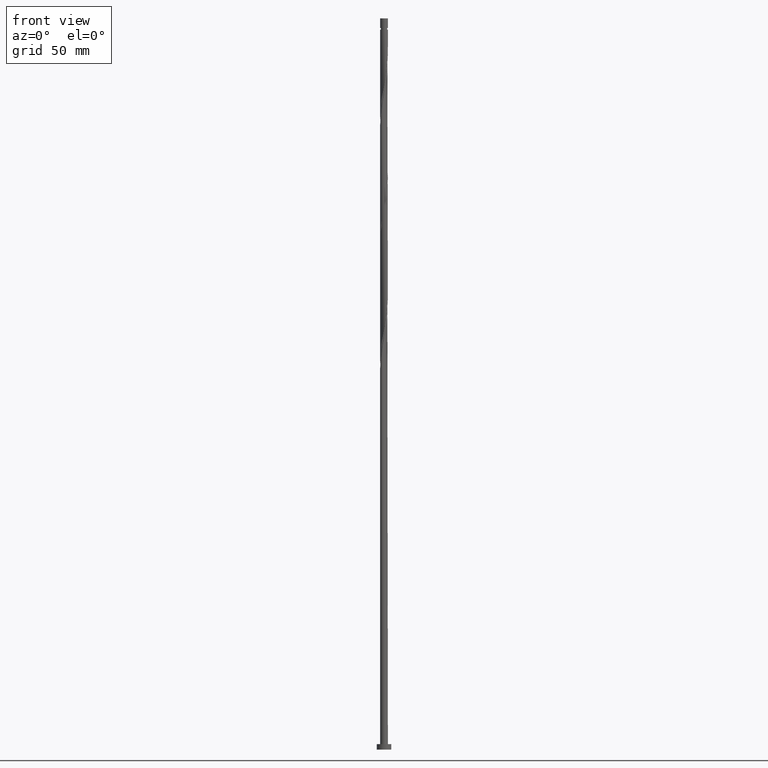
[diagram: clean part render]
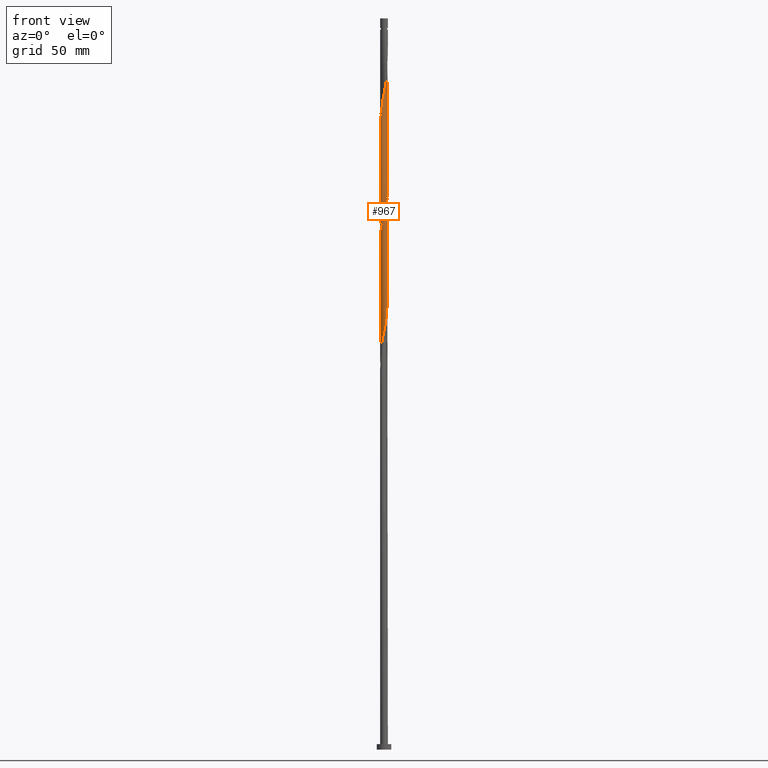
[diagram: same view with one face highlighted and labeled with its STEP entity id]
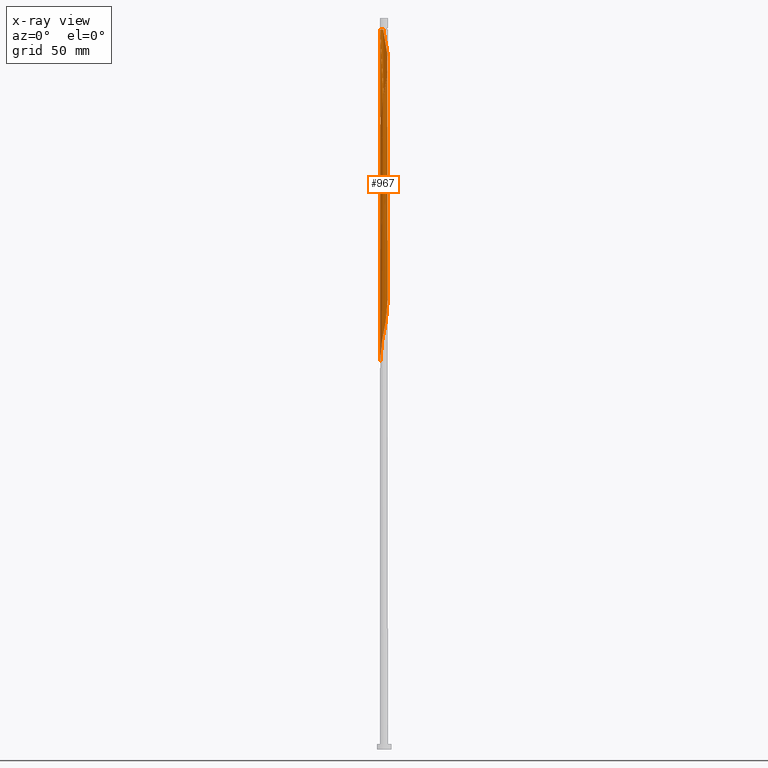
[diagram: x-ray of the same camera — body ghosted, the highlighted face saturated]
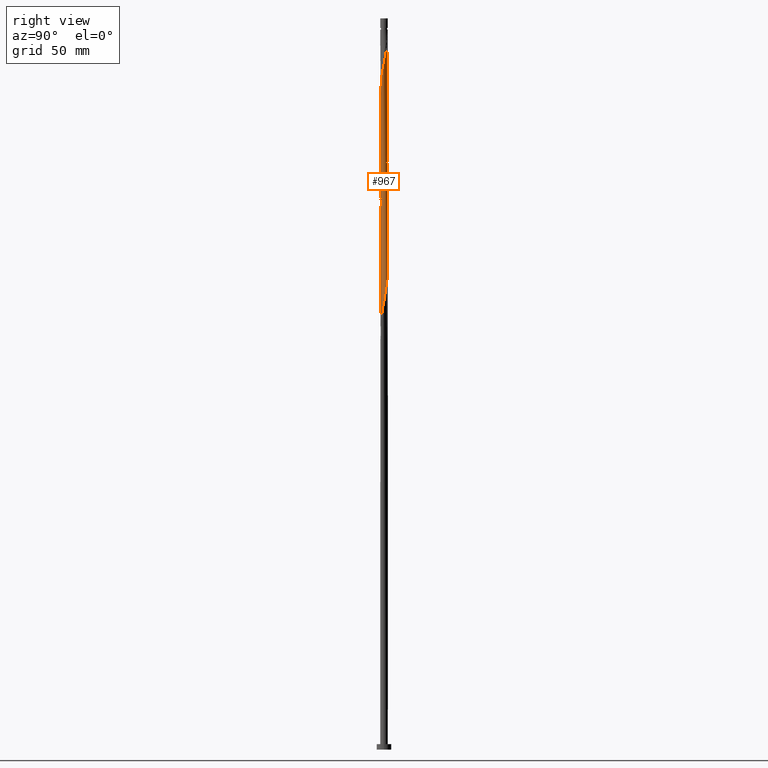
[diagram: same view with one face highlighted and labeled with its STEP entity id]
A machine part, front view. The second image highlights one B-rep face of the part: STEP entity #967.
The next image is the same camera in x-ray: the body ghosted, the highlighted face saturated — about 0% of this face is hidden behind the body in this view.
A second angle (right view) of the same face is appended — the face is thin or edge-on in the first view.
In plain terms, the highlighted cylindrical surface (bore or boss wall) has radius 2.1 mm, axis along (-0, -0, -1).
Its self-contained STEP definition (entity closure, byte-faithful):
#3 = CARTESIAN_POINT ( 'NONE',  ( -2.086410881982745380, -0.2385154744329703314, 280.5629485965473009 ) ) ;
#12 = CARTESIAN_POINT ( 'NONE',  ( 1.936752295466138918, -0.8412534553871354737, 241.6740597076583015 ) ) ;
#33 = CARTESIAN_POINT ( 'NONE',  ( -2.086410881982745380, -0.2385154744329703314, 213.8962819298806437 ) ) ;
#37 = CARTESIAN_POINT ( 'NONE',  ( 2.003044167403932097, 0.6307250299687710005, 378.3407263743250155 ) ) ;
#49 = CARTESIAN_POINT ( 'NONE',  ( 1.991227642780769580, -0.6670925532681031278, 371.6740597076584436 ) ) ;
#58 = CARTESIAN_POINT ( 'NONE',  ( 0.2398292843463734059, 2.097903416405072274, 390.5629485965473009 ) ) ;
#68 = CARTESIAN_POINT ( 'NONE',  ( -0.8715781159781998966, -1.910589329957620874, 353.8962819298806721 ) ) ;
#77 = CARTESIAN_POINT ( 'NONE',  ( 2.061341895443441263, -0.4578060946337553783, 372.7851708187694157 ) ) ;
#82 = CARTESIAN_POINT ( 'NONE',  ( 2.100000000000000089, -0.1004723985021823002, 312.1798433145046374 ) ) ;
#92 = CARTESIAN_POINT ( 'NONE',  ( 1.427142655681891137, -1.556271400022306794, 303.8962819298806153 ) ) ;
#101 = CARTESIAN_POINT ( 'NONE',  ( 0.01911953846917432628, -2.099912960874503298, 296.1185041521028438 ) ) ;
#103 = CARTESIAN_POINT ( 'NONE',  ( 0.000000000000000000, 0.000000000000000000, 393.8962819298805584 ) ) ;
#119 = CARTESIAN_POINT ( 'NONE',  ( -0.01911953846917485364, 2.099912960874503298, 262.7851708187694726 ) ) ;
#128 = CARTESIAN_POINT ( 'NONE',  ( -1.427142655681891137, 1.556271400022306794, 270.5629485965472441 ) ) ;
#130 = CARTESIAN_POINT ( 'NONE',  ( -2.100000000000000533, 9.118533406605386830E-16, 346.0217251734020465 ) ) ;
#136 = VECTOR ( 'NONE', #958, 1000.000000000000000 ) ;
#139 = CARTESIAN_POINT ( 'NONE',  ( 1.427142655681891137, -1.556271400022306794, 237.2296152632139012 ) ) ;
#147 = VERTEX_POINT ( 'NONE', #1173 ) ;
#148 = CARTESIAN_POINT ( 'NONE',  ( 0.01911953846917432628, -2.099912960874503298, 229.4518374854361866 ) ) ;
#157 = CARTESIAN_POINT ( 'NONE',  ( -1.719523182710072540, 1.225543493441491050, 272.7851708187694726 ) ) ;
#172 = DIRECTION ( 'NONE',  ( -1.000000000000000000, 0.000000000000000000, 0.000000000000000000 ) ) ;
#177 = ORIENTED_EDGE ( 'NONE', *, *, #437, .F. ) ;
#184 = EDGE_CURVE ( 'NONE', #147, #1331, #584, .T. ) ;
#187 = CARTESIAN_POINT ( 'NONE',  ( 1.398568953795477077, -1.581999276761400175, 366.1185041521028438 ) ) ;
#198 = CARTESIAN_POINT ( 'NONE',  ( 1.427142655681894468, 1.556271400022309015, 383.8962819298805584 ) ) ;
#207 = LINE ( 'NONE', #1370, #1023 ) ;
#233 = CARTESIAN_POINT ( 'NONE',  ( -0.2398292843463719626, 2.097903416405068278, 330.5629485965472441 ) ) ;
#243 = CARTESIAN_POINT ( 'NONE',  ( -0.4552981849463065278, 2.050049648858436768, 331.6740597076583299 ) ) ;
#250 = DIRECTION ( 'NONE',  ( -1.000000000000000000, 0.000000000000000000, 0.000000000000000000 ) ) ;
#267 = CARTESIAN_POINT ( 'NONE',  ( -2.003044167403927656, 0.6307250299687716666, 276.1185041521027870 ) ) ;
#269 = CARTESIAN_POINT ( 'NONE',  ( -2.090407953931884943, 0.2004858751591098720, 345.0073930409918148 ) ) ;
#277 = CARTESIAN_POINT ( 'NONE',  ( -0.2398292843463719626, 2.097903416405068278, 263.8962819298805016 ) ) ;
#279 = CARTESIAN_POINT ( 'NONE',  ( 1.991227642780766915, 0.6670925532680990200, 316.1185041521028438 ) ) ;
#287 = CARTESIAN_POINT ( 'NONE',  ( -0.4178947235847845776, -2.057999999999999385, 227.2296152632139297 ) ) ;
#289 = CARTESIAN_POINT ( 'NONE',  ( 1.696923011119767954, 1.256649961017932693, 319.4518374854361014 ) ) ;
#295 = CARTESIAN_POINT ( 'NONE',  ( -1.218829837953687045, -1.710103454798506784, 289.4518374854361014 ) ) ;
#303 = CARTESIAN_POINT ( 'NONE',  ( 1.573332919195981727, -1.390907446731899588, 238.3407263743250724 ) ) ;
#320 = CARTESIAN_POINT ( 'NONE',  ( -2.100000000000000089, -4.484524626199370022E-16, 212.6883918400687890 ) ) ;
#325 = CARTESIAN_POINT ( 'NONE',  ( 1.039090722111899678, -1.838207632835621830, 363.8962819298805016 ) ) ;
#337 = CARTESIAN_POINT ( 'NONE',  ( 1.921113390118098563, -0.8763790119024508218, 370.5629485965473009 ) ) ;
#347 = CARTESIAN_POINT ( 'NONE',  ( 1.828137739088110170, 1.033398474414314316, 380.5629485965472441 ) ) ;
#349 = ORIENTED_EDGE ( 'NONE', *, *, #1766, .F. ) ;
#358 = CARTESIAN_POINT ( 'NONE',  ( 0.6341992397615465737, -2.014077494656064005, 361.6740597076583299 ) ) ;
#366 = CARTESIAN_POINT ( 'NONE',  ( 2.100000000000000533, -4.559266703302693415E-16, 312.6883918400687890 ) ) ;
#375 = CARTESIAN_POINT ( 'NONE',  ( -1.719523182710072540, 1.225543493441491050, 339.4518374854361014 ) ) ;
#393 = CARTESIAN_POINT ( 'NONE',  ( 1.398568953795475522, 1.581999276761396178, 321.6740597076583867 ) ) ;
#408 = CARTESIAN_POINT ( 'NONE',  ( 2.090407953931884943, -0.2004858751591106214, 311.6740597076585004 ) ) ;
#417 = CARTESIAN_POINT ( 'NONE',  ( 1.218829837953687933, 1.710103454798506117, 256.1185041521027870 ) ) ;
#426 = CARTESIAN_POINT ( 'NONE',  ( -1.696923011119767066, -1.256649961017933803, 286.1185041521027870 ) ) ;
#436 = CARTESIAN_POINT ( 'NONE',  ( -1.991227642780766471, -0.6670925532681001302, 282.7851708187694157 ) ) ;
#437 = EDGE_CURVE ( 'NONE', #817, #588, #1600, .T. ) ;
#445 = CARTESIAN_POINT ( 'NONE',  ( 2.090407953931884943, -0.2004858751591106214, 245.0073930409916443 ) ) ;
#447 = DIRECTION ( 'NONE',  ( -0.000000000000000000, -0.000000000000000000, -1.000000000000000000 ) ) ;
#453 = VERTEX_POINT ( 'NONE', #1068 ) ;
#454 = CARTESIAN_POINT ( 'NONE',  ( 0.4178947235847848551, 2.057999999999999385, 260.5629485965472441 ) ) ;
#467 = CARTESIAN_POINT ( 'NONE',  ( -1.249765901046026251, -1.687627089312871087, 351.6740597076584436 ) ) ;
#472 = ORIENTED_EDGE ( 'NONE', *, *, #496, .T. ) ;
#478 = CARTESIAN_POINT ( 'NONE',  ( 1.218829837953687933, -1.710103454798511446, 365.0073930409917011 ) ) ;
#489 = CARTESIAN_POINT ( 'NONE',  ( 1.573332919195986168, 1.390907446731900032, 382.7851708187694726 ) ) ;
#496 = EDGE_CURVE ( 'NONE', #817, #453, #207, .T. ) ;
#499 = CARTESIAN_POINT ( 'NONE',  ( 1.249765901046026251, 1.687627089312870865, 385.0073930409917580 ) ) ;
#508 = CARTESIAN_POINT ( 'NONE',  ( -0.4178947235848186614, 2.058000000000550056, 393.8962819298804447 ) ) ;
#534 = CARTESIAN_POINT ( 'NONE',  ( 0.6707670855462404269, -2.002195881311804371, 299.4518374854362150 ) ) ;
#536 = CARTESIAN_POINT ( 'NONE',  ( 1.039090722111898790, 1.838207632835617833, 323.8962819298804447 ) ) ;
#558 = CARTESIAN_POINT ( 'NONE',  ( -0.4552981849463065278, 2.050049648858436768, 265.0073930409917011 ) ) ;
#568 = CARTESIAN_POINT ( 'NONE',  ( -1.547745982457621183, -1.419324618889665546, 287.2296152632139297 ) ) ;
#570 = CARTESIAN_POINT ( 'NONE',  ( 1.921113390118095454, 0.8763790119024480463, 317.2296152632139865 ) ) ;
#578 = EDGE_CURVE ( 'NONE', #1624, #588, #737, .T. ) ;
#582 = CARTESIAN_POINT ( 'NONE',  ( 1.921113390118095454, 0.8763790119024480463, 250.5629485965472156 ) ) ;
#584 = LINE ( 'NONE', #851, #1488 ) ;
#588 = VERTEX_POINT ( 'NONE', #1697 ) ;
#589 = CARTESIAN_POINT ( 'NONE',  ( -0.6341992397615471289, -2.014077494656059564, 292.7851708187694726 ) ) ;
#591 = CARTESIAN_POINT ( 'NONE',  ( 2.100000000000000977, 0.1196448486375005088, 313.2939831494533109 ) ) ;
#598 = CARTESIAN_POINT ( 'NONE',  ( -0.6341992397615471289, -2.014077494656059564, 226.1185041521027586 ) ) ;
#621 = CARTESIAN_POINT ( 'NONE',  ( 1.696923011119769509, -1.256649961017937356, 368.3407263743249587 ) ) ;
#634 = CARTESIAN_POINT ( 'NONE',  ( 1.072389146410158034, 1.818982778603432271, 386.1185041521027870 ) ) ;
#639 = CARTESIAN_POINT ( 'NONE',  ( -1.398568953795475522, -1.581999276761396400, 221.6740597076583299 ) ) ;
#643 = CARTESIAN_POINT ( 'NONE',  ( 1.719523182710076981, 1.225543493441492160, 381.6740597076583299 ) ) ;
#651 = CARTESIAN_POINT ( 'NONE',  ( 0.8715781159782001186, 1.910589329957620874, 387.2296152632139865 ) ) ;
#660 = CARTESIAN_POINT ( 'NONE',  ( 0.4178947235847845776, -2.058000000000003382, 360.5629485965473577 ) ) ;
#666 = CARTESIAN_POINT ( 'NONE',  ( 2.069336039341715949, -0.4201966045504079705, 310.5629485965472441 ) ) ;
#668 = CARTESIAN_POINT ( 'NONE',  ( -0.8715781159781976761, 1.910589329957617544, 333.8962819298806153 ) ) ;
#673 = CARTESIAN_POINT ( 'NONE',  ( 1.249765901046022476, -1.687627089312868867, 302.7851708187694726 ) ) ;
#675 = CARTESIAN_POINT ( 'NONE',  ( 0.6341992397615482391, 2.014077494656059120, 326.1185041521027870 ) ) ;
#682 = CARTESIAN_POINT ( 'NONE',  ( -2.100000000000003642, 1.121131156549833384E-16, 341.7708386863591841 ) ) ;
#697 = CARTESIAN_POINT ( 'NONE',  ( 0.6341992397615482391, 2.014077494656059120, 259.4518374854360445 ) ) ;
#698 = CARTESIAN_POINT ( 'NONE',  ( -1.936752295466139362, 0.8412534553871346965, 341.6740597076581594 ) ) ;
#705 = CARTESIAN_POINT ( 'NONE',  ( 1.072389146410153371, -1.818982778603429606, 235.0073930409916727 ) ) ;
#709 = EDGE_CURVE ( 'NONE', #1624, #1112, #1273, .T. ) ;
#715 = CARTESIAN_POINT ( 'NONE',  ( -1.218829837953687045, -1.710103454798506784, 222.7851708187695010 ) ) ;
#716 = CARTESIAN_POINT ( 'NONE',  ( 0.000000000000000000, 0.000000000000000000, 400.0000000000000000 ) ) ;
#723 = CARTESIAN_POINT ( 'NONE',  ( -1.809018200618931482, -1.066514486460190980, 285.0073930409918148 ) ) ;
#730 = CARTESIAN_POINT ( 'NONE',  ( -0.2015902074080231643, -2.101922505343939651, 228.3407263743249871 ) ) ;
#733 = CARTESIAN_POINT ( 'NONE',  ( 2.086410881982745380, 0.2385154744329700538, 313.8962819298805016 ) ) ;
#737 = CIRCLE ( 'NONE', #1785, 2.099999999999964562 ) ;
#754 = CARTESIAN_POINT ( 'NONE',  ( -2.069336039341719946, -0.4201966045504080260, 343.8962819298805584 ) ) ;
#774 = CARTESIAN_POINT ( 'NONE',  ( 2.069336039341719946, 0.4201966045504078595, 377.2296152632139865 ) ) ;
#785 = CARTESIAN_POINT ( 'NONE',  ( -1.828137739088110170, -1.033398474414314316, 347.2296152632139865 ) ) ;
#802 = CARTESIAN_POINT ( 'NONE',  ( -1.072389146410154037, 1.818982778603429606, 335.0073930409917580 ) ) ;
#812 = CARTESIAN_POINT ( 'NONE',  ( -1.249765901046022698, 1.687627089312868423, 336.1185041521027870 ) ) ;
#817 = VERTEX_POINT ( 'NONE', #682 ) ;
#838 = CARTESIAN_POINT ( 'NONE',  ( -0.8366449809367233481, -1.926142563745838698, 291.6740597076584436 ) ) ;
#846 = CARTESIAN_POINT ( 'NONE',  ( 1.991227642780766915, 0.6670925532680990200, 249.4518374854361866 ) ) ;
#851 = CARTESIAN_POINT ( 'NONE',  ( 2.100000000000000089, 2.571758278209441957E-16, 400.0000000000000000 ) ) ;
#856 = CARTESIAN_POINT ( 'NONE',  ( -0.8366449809367233481, -1.926142563745838698, 225.0073930409916727 ) ) ;
#864 = CARTESIAN_POINT ( 'NONE',  ( 1.249765901046022476, -1.687627089312868867, 236.1185041521028154 ) ) ;
#870 = DIRECTION ( 'NONE',  ( -0.000000000000000000, -0.000000000000000000, -1.000000000000000000 ) ) ;
#875 = CARTESIAN_POINT ( 'NONE',  ( 0.2015902074080222206, 2.101922505343939207, 261.6740597076583299 ) ) ;
#898 = CARTESIAN_POINT ( 'NONE',  ( 2.111479868522056158, -0.01922485423218994044, 375.0073930409917580 ) ) ;
#902 = ORIENTED_EDGE ( 'NONE', *, *, #578, .T. ) ;
#911 = CARTESIAN_POINT ( 'NONE',  ( 1.936752295466143359, 0.8412534553871343634, 379.4518374854361582 ) ) ;
#932 = CARTESIAN_POINT ( 'NONE',  ( 0.8366449809367229040, -1.926142563745842695, 362.7851708187695294 ) ) ;
#937 = EDGE_CURVE ( 'NONE', #1112, #1331, #1622, .T. ) ;
#943 = DIRECTION ( 'NONE',  ( -0.000000000000000000, -0.000000000000000000, -1.000000000000000000 ) ) ;
#951 = CARTESIAN_POINT ( 'NONE',  ( -0.6707670855462412041, 2.002195881311804371, 332.7851708187694157 ) ) ;
#956 = CARTESIAN_POINT ( 'NONE',  ( 2.003044167403927212, -0.6307250299687728878, 309.4518374854361582 ) ) ;
#958 = DIRECTION ( 'NONE',  ( -0.000000000000000000, -0.000000000000000000, -1.000000000000000000 ) ) ;
#967 = ADVANCED_FACE ( 'NONE', ( #1599 ), #1034, .T. ) ;
#968 = CARTESIAN_POINT ( 'NONE',  ( 1.547745982457621183, 1.419324618889665546, 320.5629485965471872 ) ) ;
#977 = DIRECTION ( 'NONE',  ( -0.000000000000000000, -0.000000000000000000, -1.000000000000000000 ) ) ;
#996 = CARTESIAN_POINT ( 'NONE',  ( -1.936752295466139362, 0.8412534553871346965, 275.0073930409917011 ) ) ;
#1005 = CARTESIAN_POINT ( 'NONE',  ( 1.547745982457621183, 1.419324618889665546, 253.8962819298805584 ) ) ;
#1014 = CARTESIAN_POINT ( 'NONE',  ( 2.111479868522052605, 0.01922485423218681100, 246.1185041521027017 ) ) ;
#1022 = CARTESIAN_POINT ( 'NONE',  ( -1.398568953795475522, -1.581999276761396400, 288.3407263743250155 ) ) ;
#1023 = VECTOR ( 'NONE', #943, 1000.000000000000000 ) ;
#1034 = CYLINDRICAL_SURFACE ( 'NONE', #1324, 2.100000000000000089 ) ;
#1045 = CARTESIAN_POINT ( 'NONE',  ( -2.100000000000003642, 1.121131156549833384E-16, 341.7708386863591841 ) ) ;
#1052 = CARTESIAN_POINT ( 'NONE',  ( -2.061341895443437267, -0.4578060946337520476, 215.0073930409917011 ) ) ;
#1057 = CARTESIAN_POINT ( 'NONE',  ( -2.100000000000004086, -0.1004723985021745286, 342.2793872119232219 ) ) ;
#1068 = CARTESIAN_POINT ( 'NONE',  ( -2.100000000000000089, -4.484524626199370022E-16, 212.6883918400687890 ) ) ;
#1085 = CARTESIAN_POINT ( 'NONE',  ( -2.003044167403932097, -0.6307250299687718886, 345.0073930409917011 ) ) ;
#1094 = CARTESIAN_POINT ( 'NONE',  ( -1.828137739088106173, 1.033398474414312762, 340.5629485965471872 ) ) ;
#1099 = CARTESIAN_POINT ( 'NONE',  ( -2.099999999999964562, 0.000000000000000000, 393.8962819298805584 ) ) ;
#1108 = CARTESIAN_POINT ( 'NONE',  ( 0.4552981849463058062, -2.050049648858437212, 298.3407263743250155 ) ) ;
#1110 = CARTESIAN_POINT ( 'NONE',  ( 1.218829837953687933, 1.710103454798506117, 322.7851708187694157 ) ) ;
#1112 = VERTEX_POINT ( 'NONE', #130 ) ;
#1117 = CARTESIAN_POINT ( 'NONE',  ( 1.828137739088106173, -1.033398474414312984, 307.2296152632139865 ) ) ;
#1137 = CARTESIAN_POINT ( 'NONE',  ( 1.039090722111898790, 1.838207632835617833, 257.2296152632139297 ) ) ;
#1147 = CARTESIAN_POINT ( 'NONE',  ( 0.2398292843463716295, -2.097903416405068722, 230.5629485965471872 ) ) ;
#1156 = CARTESIAN_POINT ( 'NONE',  ( 2.069336039341715949, -0.4201966045504079705, 243.8962819298805584 ) ) ;
#1163 = CARTESIAN_POINT ( 'NONE',  ( 0.8366449809367234591, 1.926142563745838698, 258.3407263743250724 ) ) ;
#1173 = CARTESIAN_POINT ( 'NONE',  ( 2.100000000000000089, 2.571758278209441957E-16, 393.8962819298805584 ) ) ;
#1174 = CARTESIAN_POINT ( 'NONE',  ( -1.039090722111898568, -1.838207632835618277, 223.8962819298805300 ) ) ;
#1184 = CARTESIAN_POINT ( 'NONE',  ( -1.921113390118095454, -0.8763790119024484904, 217.2296152632138444 ) ) ;
#1197 = CARTESIAN_POINT ( 'NONE',  ( -0.6707670855462435355, -2.002195881311807923, 355.0073930409917011 ) ) ;
#1205 = CARTESIAN_POINT ( 'NONE',  ( -1.696923011119767066, -1.256649961017933803, 219.4518374854361014 ) ) ;
#1211 = CARTESIAN_POINT ( 'NONE',  ( 0.4552981849463094699, 2.050049648858440321, 389.4518374854362150 ) ) ;
#1230 = CARTESIAN_POINT ( 'NONE',  ( 0.6707670855462437576, 2.002195881311807923, 388.3407263743250155 ) ) ;
#1239 = CARTESIAN_POINT ( 'NONE',  ( -1.936752295466143359, -0.8412534553871354737, 346.1185041521028438 ) ) ;
#1245 = CARTESIAN_POINT ( 'NONE',  ( 1.936752295466138918, -0.8412534553871354737, 308.3407263743250155 ) ) ;
#1248 = CARTESIAN_POINT ( 'NONE',  ( -0.01911953846917485364, 2.099912960874503298, 329.4518374854361582 ) ) ;
#1255 = CARTESIAN_POINT ( 'NONE',  ( 1.072389146410153371, -1.818982778603429606, 301.6740597076583867 ) ) ;
#1257 = CARTESIAN_POINT ( 'NONE',  ( -2.003044167403927656, 0.6307250299687716666, 342.7851708187694726 ) ) ;
#1262 = CARTESIAN_POINT ( 'NONE',  ( -0.2015902074080231643, -2.101922505343939651, 295.0073930409916443 ) ) ;
#1270 = CARTESIAN_POINT ( 'NONE',  ( 2.100000000000000533, -4.559266703302693415E-16, 312.6883918400687890 ) ) ;
#1273 = LINE ( 'NONE', #1682, #136 ) ;
#1281 = CARTESIAN_POINT ( 'NONE',  ( -2.090407953931884943, 0.2004858751591098720, 278.3407263743251292 ) ) ;
#1292 = CARTESIAN_POINT ( 'NONE',  ( 2.061341895443437267, 0.4578060946337513815, 248.3407263743249871 ) ) ;
#1301 = CARTESIAN_POINT ( 'NONE',  ( 1.398568953795475522, 1.581999276761396178, 255.0073930409916159 ) ) ;
#1303 = CARTESIAN_POINT ( 'NONE',  ( 2.100000000000000533, -4.559266703302693415E-16, 312.6883918400687890 ) ) ;
#1310 = CARTESIAN_POINT ( 'NONE',  ( -1.921113390118095454, -0.8763790119024484904, 283.8962819298805016 ) ) ;
#1318 = ORIENTED_EDGE ( 'NONE', *, *, #937, .F. ) ;
#1319 = CARTESIAN_POINT ( 'NONE',  ( -2.069336039341715949, 0.4201966045504077485, 277.2296152632138160 ) ) ;
#1324 = AXIS2_PLACEMENT_3D ( 'NONE', #716, #447, #172 ) ;
#1331 = VERTEX_POINT ( 'NONE', #366 ) ;
#1342 = ORIENTED_EDGE ( 'NONE', *, *, #709, .F. ) ;
#1344 = CARTESIAN_POINT ( 'NONE',  ( -2.100000000000000533, -0.1196448486375042419, 213.2939831494532825 ) ) ;
#1349 = CARTESIAN_POINT ( 'NONE',  ( 1.809018200618934591, -1.066514486460194533, 369.4518374854362150 ) ) ;
#1359 = CARTESIAN_POINT ( 'NONE',  ( -0.01911953846917616856, -2.099912960874507739, 358.3407263743250155 ) ) ;
#1370 = CARTESIAN_POINT ( 'NONE',  ( -2.100000000000000089, 0.000000000000000000, 400.0000000000000000 ) ) ;
#1379 = CARTESIAN_POINT ( 'NONE',  ( -1.427142655681894468, -1.556271400022309681, 350.5629485965473577 ) ) ;
#1389 = CARTESIAN_POINT ( 'NONE',  ( -2.090407953931888052, -0.2004858751591091781, 342.7851708187695294 ) ) ;
#1406 = CARTESIAN_POINT ( 'NONE',  ( 1.573332919195981727, -1.390907446731899588, 305.0073930409917011 ) ) ;
#1408 = CARTESIAN_POINT ( 'NONE',  ( 0.4178947235847848551, 2.057999999999999385, 327.2296152632139865 ) ) ;
#1413 = CARTESIAN_POINT ( 'NONE',  ( 0.2398292843463716295, -2.097903416405068722, 297.2296152632138160 ) ) ;
#1432 = CARTESIAN_POINT ( 'NONE',  ( -1.039090722111898568, -1.838207632835618277, 290.5629485965473009 ) ) ;
#1434 = CARTESIAN_POINT ( 'NONE',  ( -2.069336039341715949, 0.4201966045504077485, 343.8962819298805584 ) ) ;
#1440 = CARTESIAN_POINT ( 'NONE',  ( 1.828137739088106173, -1.033398474414312984, 240.5629485965472441 ) ) ;
#1442 = CARTESIAN_POINT ( 'NONE',  ( 2.061341895443437267, 0.4578060946337513815, 315.0073930409915874 ) ) ;
#1449 = CARTESIAN_POINT ( 'NONE',  ( 0.8715781159781975651, -1.910589329957617322, 233.8962819298805869 ) ) ;
#1459 = CARTESIAN_POINT ( 'NONE',  ( 0.6707670855462404269, -2.002195881311804371, 232.7851708187694157 ) ) ;
#1467 = CARTESIAN_POINT ( 'NONE',  ( -1.828137739088106173, 1.033398474414312762, 273.8962819298805584 ) ) ;
#1474 = ORIENTED_EDGE ( 'NONE', *, *, #184, .T. ) ;
#1488 = VECTOR ( 'NONE', #870, 1000.000000000000000 ) ;
#1495 = CARTESIAN_POINT ( 'NONE',  ( 2.090407953931888496, 0.2004858751591080401, 376.1185041521029007 ) ) ;
#1503 = CARTESIAN_POINT ( 'NONE',  ( 0.2015902074080216100, -2.101922505343943204, 359.4518374854361582 ) ) ;
#1522 = CARTESIAN_POINT ( 'NONE',  ( -1.573332919195985058, -1.390907446731900921, 349.4518374854361014 ) ) ;
#1548 = CARTESIAN_POINT ( 'NONE',  ( -2.100000000000000089, 0.1004723985021819949, 345.5131766478380655 ) ) ;
#1555 = CARTESIAN_POINT ( 'NONE',  ( -2.100000000000000533, 9.118533406605386830E-16, 346.0217251734021033 ) ) ;
#1572 = CARTESIAN_POINT ( 'NONE',  ( 1.809018200618931704, 1.066514486460190536, 251.6740597076583867 ) ) ;
#1579 = CARTESIAN_POINT ( 'NONE',  ( -0.8715781159781976761, 1.910589329957617544, 267.2296152632138728 ) ) ;
#1588 = CARTESIAN_POINT ( 'NONE',  ( 0.4552981849463058062, -2.050049648858437212, 231.6740597076583583 ) ) ;
#1591 = CARTESIAN_POINT ( 'NONE',  ( 1.809018200618931704, 1.066514486460190536, 318.3407263743250724 ) ) ;
#1597 = CARTESIAN_POINT ( 'NONE',  ( 1.719523182710071652, -1.225543493441491938, 239.4518374854361298 ) ) ;
#1599 = FACE_OUTER_BOUND ( 'NONE', #1621, .T. ) ;
#1600 =( BOUNDED_CURVE ( )  B_SPLINE_CURVE ( 2, ( #1045, #1057, #1389, #754, #1085, #1239, #785, #1630, #1522, #1379, #467, #1806, #68, #1197, #1664, #1674, #1359, #1503, #660, #358, #932, #325, #478, #187, #1642, #621, #1349, #337, #49, #77, #1787, #898, #1495, #774, #37, #911, #347, #643, #489, #198, #499, #634, #651, #1230, #1211, #58, #1797, #1818, #508 ),
 .UNSPECIFIED., .F., .T. ) 
 B_SPLINE_CURVE_WITH_KNOTS ( ( 3, 2, 2, 2, 2, 2, 2, 2, 2, 2, 2, 2, 2, 2, 2, 2, 2, 2, 2, 2, 2, 2, 2, 2, 3 ),
 ( 0.5545286012773114059, 0.5583333333333333481, 0.5666666666666666519, 0.5749999999999999556, 0.5833333333333332593, 0.5916666666666666741, 0.5999999999999999778, 0.6083333333333333925, 0.6166666666666666963, 0.6250000000000000000, 0.6333333333333333037, 0.6416666666666666075, 0.6500000000000000222, 0.6583333333333333259, 0.6666666666666667407, 0.6750000000000000444, 0.6833333333333333481, 0.6916666666666666519, 0.6999999999999999556, 0.7083333333333332593, 0.7166666666666666741, 0.7249999999999999778, 0.7333333333333333925, 0.7416666666666666963, 0.7500000000000000000 ),
 .UNSPECIFIED. ) 
 CURVE ( )  GEOMETRIC_REPRESENTATION_ITEM ( )  RATIONAL_B_SPLINE_CURVE ( ( 0.9066196499552731103, 0.9068171577856858345, 0.9090909090909848889, 0.9041108139712329406, 0.9090909090909848889, 0.9041108139712329406, 0.9090909090909848889, 0.9041108139712329406, 0.9090909090909848889, 0.9041108139712329406, 0.9090909090909848889, 0.9041108139712329406, 0.9090909090909848889, 0.9041108139712329406, 0.9090909090909848889, 0.9041108139712329406, 0.9090909090909848889, 0.9041108139712329406, 0.9090909090909848889, 0.9041108139712329406, 0.9090909090909848889, 0.9041108139712329406, 0.9090909090909848889, 0.9041108139712329406, 0.9090909090909848889, 0.9041108139712329406, 0.9090909090909848889, 0.9041108139712329406, 0.9090909090909848889, 0.9041108139712329406, 0.9090909090909848889, 0.9041108139712329406, 0.9090909090909848889, 0.9041108139712329406, 0.9090909090909848889, 0.9041108139712329406, 0.9090909090909848889, 0.9041108139712329406, 0.9090909090909848889, 0.9041108139712329406, 0.9090909090909848889, 0.9041108139712329406, 0.9090909090909848889, 0.9041108139712329406, 0.9090909090909848889, 0.9041108139712329406, 0.9090909090909848889, 0.9041108139712329406, 0.9090909090909848889 ) ) 
 REPRESENTATION_ITEM ( '' )  );
#1607 = CARTESIAN_POINT ( 'NONE',  ( -2.061341895443437267, -0.4578060946337520476, 281.6740597076583867 ) ) ;
#1616 = CARTESIAN_POINT ( 'NONE',  ( -1.991227642780766471, -0.6670925532681001302, 216.1185041521027870 ) ) ;
#1621 = EDGE_LOOP ( 'NONE', ( #1342, #902, #177, #472, #349, #1877, #1474, #1318 ) ) ;
#1622 =( BOUNDED_CURVE ( )  B_SPLINE_CURVE ( 2, ( #1555, #1548, #269, #1434, #1257, #698, #1094, #375, #1852, #1689, #812, #802, #668, #951, #243, #233, #1248, #1835, #1408, #675, #1842, #536, #1110, #393, #968, #289, #1591, #570, #279, #1442, #733, #591, #1303 ),
 .UNSPECIFIED., .F., .T. ) 
 B_SPLINE_CURVE_WITH_KNOTS ( ( 3, 2, 2, 2, 2, 2, 2, 2, 2, 2, 2, 2, 2, 2, 2, 2, 3 ),
 ( 0.4295286012773116280, 0.4333333333333333481, 0.4416666666666666519, 0.4500000000000000111, 0.4583333333333333148, 0.4666666666666666741, 0.4749999999999999778, 0.4833333333333333370, 0.4916666666666666408, 0.5000000000000000000, 0.5083333333333333037, 0.5166666666666667185, 0.5250000000000000222, 0.5333333333333333259, 0.5416666666666666297, 0.5500000000000000444, 0.5545286012773116280 ),
 .UNSPECIFIED. ) 
 CURVE ( )  GEOMETRIC_REPRESENTATION_ITEM ( )  RATIONAL_B_SPLINE_CURVE ( ( 0.9066196499552657828, 0.9068171577856786181, 0.9090909090909774504, 0.9041108139712256131, 0.9090909090909774504, 0.9041108139712256131, 0.9090909090909774504, 0.9041108139712256131, 0.9090909090909774504, 0.9041108139712256131, 0.9090909090909774504, 0.9041108139712256131, 0.9090909090909774504, 0.9041108139712256131, 0.9090909090909774504, 0.9041108139712256131, 0.9090909090909774504, 0.9041108139712256131, 0.9090909090909774504, 0.9041108139712256131, 0.9090909090909774504, 0.9041108139712256131, 0.9090909090909774504, 0.9041108139712256131, 0.9090909090909774504, 0.9041108139712256131, 0.9090909090909774504, 0.9041108139712256131, 0.9090909090909774504, 0.9041108139712256131, 0.9090909090909774504, 0.9063845652765244454, 0.9066196499552657828 ) ) 
 REPRESENTATION_ITEM ( '' )  );
#1624 = VERTEX_POINT ( 'NONE', #1099 ) ;
#1630 = CARTESIAN_POINT ( 'NONE',  ( -1.719523182710076314, -1.225543493441492604, 348.3407263743249587 ) ) ;
#1642 = CARTESIAN_POINT ( 'NONE',  ( 1.547745982457623626, -1.419324618889668876, 367.2296152632140434 ) ) ;
#1648 = CARTESIAN_POINT ( 'NONE',  ( -1.809018200618931482, -1.066514486460190980, 218.3407263743249871 ) ) ;
#1664 = CARTESIAN_POINT ( 'NONE',  ( -0.4552981849463083597, -2.050049648858440321, 356.1185041521028438 ) ) ;
#1674 = CARTESIAN_POINT ( 'NONE',  ( -0.2398292843463731006, -2.097903416405072274, 357.2296152632138728 ) ) ;
#1682 = CARTESIAN_POINT ( 'NONE',  ( -2.100000000000000089, 0.000000000000000000, 400.0000000000000000 ) ) ;
#1689 = CARTESIAN_POINT ( 'NONE',  ( -1.427142655681891137, 1.556271400022306794, 337.2296152632138160 ) ) ;
#1697 = CARTESIAN_POINT ( 'NONE',  ( -0.4178947235848186614, 2.058000000000550056, 393.8962819298804447 ) ) ;
#1726 = CARTESIAN_POINT ( 'NONE',  ( -0.6707670855462412041, 2.002195881311804371, 266.1185041521027301 ) ) ;
#1737 = CARTESIAN_POINT ( 'NONE',  ( -1.573332919195981949, 1.390907446731899144, 271.6740597076582731 ) ) ;
#1745 = CARTESIAN_POINT ( 'NONE',  ( 2.086410881982745380, 0.2385154744329700538, 247.2296152632139297 ) ) ;
#1753 = CARTESIAN_POINT ( 'NONE',  ( 1.696923011119767954, 1.256649961017932693, 252.7851708187694442 ) ) ;
#1761 = CARTESIAN_POINT ( 'NONE',  ( -1.249765901046022698, 1.687627089312868423, 269.4518374854361582 ) ) ;
#1766 = EDGE_CURVE ( 'NONE', #1331, #453, #1811, .T. ) ;
#1785 = AXIS2_PLACEMENT_3D ( 'NONE', #103, #977, #250 ) ;
#1787 = CARTESIAN_POINT ( 'NONE',  ( 2.086410881982748489, -0.2385154744329716359, 373.8962819298806153 ) ) ;
#1797 = CARTESIAN_POINT ( 'NONE',  ( 0.01911953846917643224, 2.099912960874507739, 391.6740597076583299 ) ) ;
#1802 = CARTESIAN_POINT ( 'NONE',  ( -1.547745982457621183, -1.419324618889665546, 220.5629485965472441 ) ) ;
#1806 = CARTESIAN_POINT ( 'NONE',  ( -1.072389146410156924, -1.818982778603432937, 352.7851708187695294 ) ) ;
#1811 =( BOUNDED_CURVE ( )  B_SPLINE_CURVE ( 2, ( #1270, #82, #408, #666, #956, #1245, #1117, #1833, #1406, #92, #673, #1255, #1840, #534, #1108, #1413, #101, #1262, #1848, #589, #838, #1432, #295, #1022, #568, #426, #723, #1310, #436, #1607, #3, #1890, #1281, #1319, #267, #996, #1467, #157, #1737, #128, #1761, #1867, #1579, #1726, #558, #277, #119, #875, #454, #697, #1163, #1137, #417, #1301, #1005, #1753, #1572, #582, #846, #1292, #1745, #1014, #445, #1156, #1878, #12, #1440, #1597, #303, #139, #864, #705, #1449, #1459, #1588, #1147, #148, #730, #287, #598, #856, #1174, #715, #639, #1802, #1205, #1648, #1184, #1616, #1052, #33, #1344, #320 ),
 .UNSPECIFIED., .F., .T. ) 
 B_SPLINE_CURVE_WITH_KNOTS ( ( 3, 2, 2, 2, 2, 2, 2, 2, 2, 2, 2, 2, 2, 2, 2, 2, 2, 2, 2, 2, 2, 2, 2, 2, 2, 2, 2, 2, 2, 2, 2, 2, 2, 2, 2, 2, 2, 2, 2, 2, 2, 2, 2, 2, 2, 2, 3 ),
 ( 0.5545286012773116280, 0.5583333333333333481, 0.5666666666666666519, 0.5749999999999999556, 0.5833333333333333703, 0.5916666666666666741, 0.5999999999999999778, 0.6083333333333332815, 0.6166666666666666963, 0.6250000000000000000, 0.6333333333333333037, 0.6416666666666667185, 0.6500000000000000222, 0.6583333333333333259, 0.6666666666666666297, 0.6750000000000000444, 0.6833333333333333481, 0.6916666666666666519, 0.6999999999999999556, 0.7083333333333333703, 0.7166666666666666741, 0.7249999999999999778, 0.7333333333333332815, 0.7416666666666666963, 0.7500000000000000000, 0.7583333333333333037, 0.7666666666666667185, 0.7750000000000000222, 0.7833333333333333259, 0.7916666666666666297, 0.8000000000000000444, 0.8083333333333333481, 0.8166666666666666519, 0.8249999999999999556, 0.8333333333333333703, 0.8416666666666666741, 0.8499999999999999778, 0.8583333333333332815, 0.8666666666666666963, 0.8750000000000000000, 0.8833333333333333037, 0.8916666666666667185, 0.9000000000000000222, 0.9083333333333333259, 0.9166666666666666297, 0.9250000000000000444, 0.9295286012773115170 ),
 .UNSPECIFIED. ) 
 CURVE ( )  GEOMETRIC_REPRESENTATION_ITEM ( )  RATIONAL_B_SPLINE_CURVE ( ( 0.9066196499552657828, 0.9068171577856786181, 0.9090909090909774504, 0.9041108139712256131, 0.9090909090909774504, 0.9041108139712256131, 0.9090909090909774504, 0.9041108139712256131, 0.9090909090909774504, 0.9041108139712256131, 0.9090909090909774504, 0.9041108139712256131, 0.9090909090909774504, 0.9041108139712256131, 0.9090909090909774504, 0.9041108139712256131, 0.9090909090909774504, 0.9041108139712256131, 0.9090909090909774504, 0.9041108139712256131, 0.9090909090909774504, 0.9041108139712256131, 0.9090909090909774504, 0.9041108139712256131, 0.9090909090909774504, 0.9041108139712256131, 0.9090909090909774504, 0.9041108139712256131, 0.9090909090909774504, 0.9041108139712256131, 0.9090909090909774504, 0.9041108139712256131, 0.9090909090909774504, 0.9041108139712256131, 0.9090909090909774504, 0.9041108139712256131, 0.9090909090909774504, 0.9041108139712256131, 0.9090909090909774504, 0.9041108139712256131, 0.9090909090909774504, 0.9041108139712256131, 0.9090909090909774504, 0.9041108139712256131, 0.9090909090909774504, 0.9041108139712256131, 0.9090909090909774504, 0.9041108139712256131, 0.9090909090909774504, 0.9041108139712256131, 0.9090909090909774504, 0.9041108139712256131, 0.9090909090909774504, 0.9041108139712256131, 0.9090909090909774504, 0.9041108139712256131, 0.9090909090909774504, 0.9041108139712256131, 0.9090909090909774504, 0.9041108139712256131, 0.9090909090909774504, 0.9041108139712256131, 0.9090909090909774504, 0.9041108139712256131, 0.9090909090909774504, 0.9041108139712256131, 0.9090909090909774504, 0.9041108139712256131, 0.9090909090909774504, 0.9041108139712256131, 0.9090909090909774504, 0.9041108139712256131, 0.9090909090909774504, 0.9041108139712256131, 0.9090909090909774504, 0.9041108139712256131, 0.9090909090909774504, 0.9041108139712256131, 0.9090909090909774504, 0.9041108139712256131, 0.9090909090909774504, 0.9041108139712256131, 0.9090909090909774504, 0.9041108139712256131, 0.9090909090909774504, 0.9041108139712256131, 0.9090909090909774504, 0.9041108139712256131, 0.9090909090909774504, 0.9041108139712256131, 0.9090909090909774504, 0.9063845652765245564, 0.9066196499552656718 ) ) 
 REPRESENTATION_ITEM ( '' )  );
#1818 = CARTESIAN_POINT ( 'NONE',  ( -0.2015902074080204720, 2.101922505343943648, 392.7851708187695294 ) ) ;
#1833 = CARTESIAN_POINT ( 'NONE',  ( 1.719523182710071652, -1.225543493441491938, 306.1185041521027870 ) ) ;
#1835 = CARTESIAN_POINT ( 'NONE',  ( 0.2015902074080222206, 2.101922505343939207, 328.3407263743249587 ) ) ;
#1840 = CARTESIAN_POINT ( 'NONE',  ( 0.8715781159781975651, -1.910589329957617322, 300.5629485965472441 ) ) ;
#1842 = CARTESIAN_POINT ( 'NONE',  ( 0.8366449809367234591, 1.926142563745838698, 325.0073930409917011 ) ) ;
#1848 = CARTESIAN_POINT ( 'NONE',  ( -0.4178947235847845776, -2.057999999999999385, 293.8962819298806153 ) ) ;
#1852 = CARTESIAN_POINT ( 'NONE',  ( -1.573332919195981949, 1.390907446731899144, 338.3407263743250155 ) ) ;
#1867 = CARTESIAN_POINT ( 'NONE',  ( -1.072389146410154037, 1.818982778603429606, 268.3407263743250724 ) ) ;
#1877 = ORIENTED_EDGE ( 'NONE', *, *, #184, .F. ) ;
#1878 = CARTESIAN_POINT ( 'NONE',  ( 2.003044167403927212, -0.6307250299687728878, 242.7851708187695010 ) ) ;
#1890 = CARTESIAN_POINT ( 'NONE',  ( -2.111479868522052161, -0.01922485423218809122, 279.4518374854360445 ) ) ;